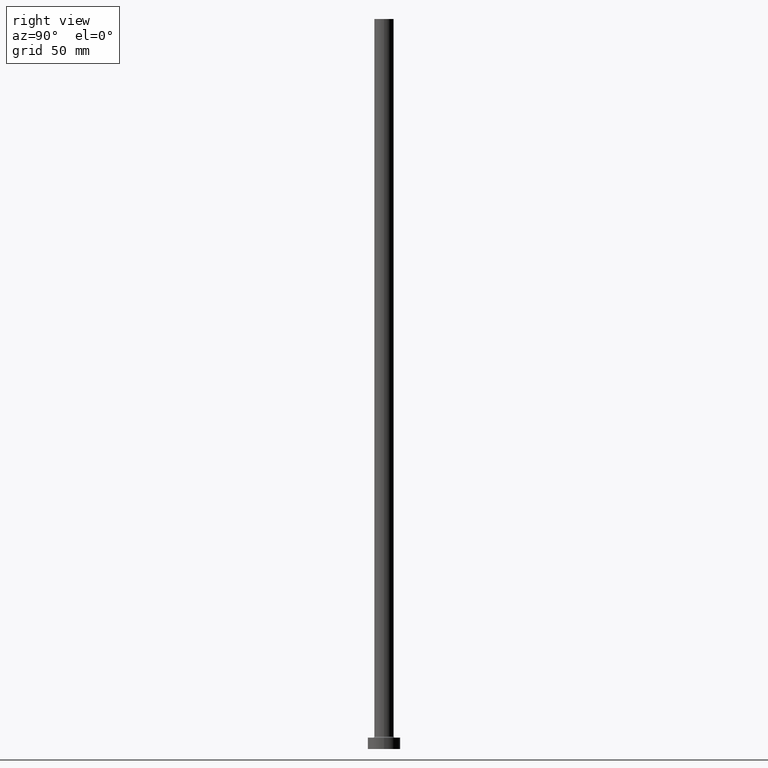
[diagram: clean part render]
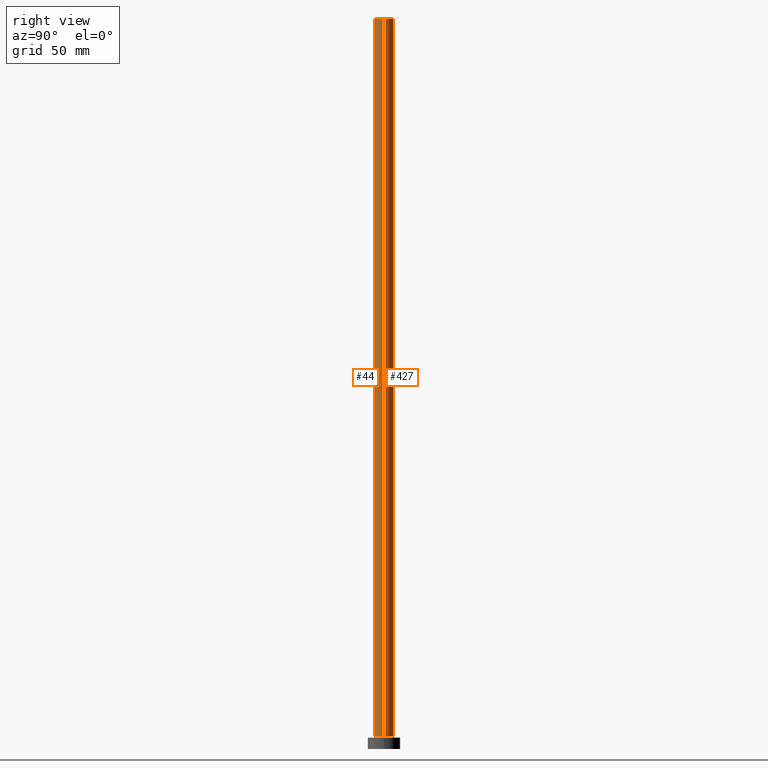
[diagram: same view with one multi-face feature highlighted, each face labeled with its STEP entity id]
A machine part, right view. The highlighted faces form ONE feature: a constant-radius fillet chain: 2 tangent blend faces with common blend radius 6 mm. The faces share edges in the B-rep.
Their STEP definitions:
[1] entity #44 (Cylinder):
#3 = DIRECTION ( 'NONE',  ( 0.000000000000000000, 0.000000000000000000, 1.000000000000000000 ) ) ;
#30 = LINE ( 'NONE', #189, #120 ) ;
#31 = CIRCLE ( 'NONE', #143, 6.000000000000000888 ) ;
#32 = CARTESIAN_POINT ( 'NONE',  ( 0.000000000000000000, 0.000000000000000000, 7.699999999999985079 ) ) ;
#44 = ADVANCED_FACE ( 'NONE', ( #417 ), #104, .T. ) ;
#45 = CARTESIAN_POINT ( 'NONE',  ( -6.000000000000000888, 0.000000000000000000, 450.0000000000000000 ) ) ;
#59 = CARTESIAN_POINT ( 'NONE',  ( 0.000000000000000000, 0.000000000000000000, 450.0000000000000000 ) ) ;
#68 = VERTEX_POINT ( 'NONE', #409 ) ;
#73 = AXIS2_PLACEMENT_3D ( 'NONE', #59, #218, #352 ) ;
#79 = EDGE_CURVE ( 'NONE', #258, #68, #347, .T. ) ;
#85 = VERTEX_POINT ( 'NONE', #195 ) ;
#89 = ORIENTED_EDGE ( 'NONE', *, *, #422, .F. ) ;
#100 = VERTEX_POINT ( 'NONE', #344 ) ;
#104 = CYLINDRICAL_SURFACE ( 'NONE', #73, 6.000000000000000888 ) ;
#105 = LINE ( 'NONE', #318, #328 ) ;
#120 = VECTOR ( 'NONE', #287, 1000.000000000000000 ) ;
#143 = AXIS2_PLACEMENT_3D ( 'NONE', #32, #3, #288 ) ;
#159 = AXIS2_PLACEMENT_3D ( 'NONE', #216, #350, #380 ) ;
#189 = CARTESIAN_POINT ( 'NONE',  ( 6.000000000000000888, 7.347880794884120722E-16, 450.0000000000000000 ) ) ;
#194 = ORIENTED_EDGE ( 'NONE', *, *, #79, .F. ) ;
#195 = CARTESIAN_POINT ( 'NONE',  ( 6.000000000000000888, 7.347880794884120722E-16, 7.699999999999985079 ) ) ;
#216 = CARTESIAN_POINT ( 'NONE',  ( 0.000000000000000000, 0.000000000000000000, 450.0000000000000000 ) ) ;
#217 = ORIENTED_EDGE ( 'NONE', *, *, #331, .T. ) ;
#218 = DIRECTION ( 'NONE',  ( -0.000000000000000000, -0.000000000000000000, -1.000000000000000000 ) ) ;
#250 = DIRECTION ( 'NONE',  ( -0.000000000000000000, -0.000000000000000000, -1.000000000000000000 ) ) ;
#258 = VERTEX_POINT ( 'NONE', #45 ) ;
#271 = EDGE_LOOP ( 'NONE', ( #89, #194, #343, #217 ) ) ;
#287 = DIRECTION ( 'NONE',  ( -0.000000000000000000, -0.000000000000000000, -1.000000000000000000 ) ) ;
#288 = DIRECTION ( 'NONE',  ( 1.000000000000000000, 0.000000000000000000, 0.000000000000000000 ) ) ;
#318 = CARTESIAN_POINT ( 'NONE',  ( -6.000000000000000888, 0.000000000000000000, 450.0000000000000000 ) ) ;
#328 = VECTOR ( 'NONE', #250, 1000.000000000000000 ) ;
#331 = EDGE_CURVE ( 'NONE', #100, #85, #31, .T. ) ;
#343 = ORIENTED_EDGE ( 'NONE', *, *, #391, .T. ) ;
#344 = CARTESIAN_POINT ( 'NONE',  ( -6.000000000000000888, 0.000000000000000000, 7.699999999999985079 ) ) ;
#347 = CIRCLE ( 'NONE', #159, 6.000000000000000888 ) ;
#350 = DIRECTION ( 'NONE',  ( 0.000000000000000000, 0.000000000000000000, 1.000000000000000000 ) ) ;
#352 = DIRECTION ( 'NONE',  ( -1.000000000000000000, 0.000000000000000000, 0.000000000000000000 ) ) ;
#380 = DIRECTION ( 'NONE',  ( 1.000000000000000000, 0.000000000000000000, 0.000000000000000000 ) ) ;
#391 = EDGE_CURVE ( 'NONE', #258, #100, #105, .T. ) ;
#409 = CARTESIAN_POINT ( 'NONE',  ( 6.000000000000000888, 7.347880794884120722E-16, 450.0000000000000000 ) ) ;
#417 = FACE_OUTER_BOUND ( 'NONE', #271, .T. ) ;
#422 = EDGE_CURVE ( 'NONE', #68, #85, #30, .T. ) ;
[2] entity #427 (Cylinder):
#5 = FACE_OUTER_BOUND ( 'NONE', #144, .T. ) ;
#7 = ORIENTED_EDGE ( 'NONE', *, *, #341, .F. ) ;
#30 = LINE ( 'NONE', #189, #120 ) ;
#34 = CIRCLE ( 'NONE', #102, 6.000000000000000888 ) ;
#38 = CARTESIAN_POINT ( 'NONE',  ( 0.000000000000000000, 0.000000000000000000, 450.0000000000000000 ) ) ;
#40 = AXIS2_PLACEMENT_3D ( 'NONE', #150, #423, #108 ) ;
#45 = CARTESIAN_POINT ( 'NONE',  ( -6.000000000000000888, 0.000000000000000000, 450.0000000000000000 ) ) ;
#68 = VERTEX_POINT ( 'NONE', #409 ) ;
#85 = VERTEX_POINT ( 'NONE', #195 ) ;
#100 = VERTEX_POINT ( 'NONE', #344 ) ;
#102 = AXIS2_PLACEMENT_3D ( 'NONE', #119, #333, #230 ) ;
#105 = LINE ( 'NONE', #318, #328 ) ;
#108 = DIRECTION ( 'NONE',  ( 1.000000000000000000, 0.000000000000000000, 0.000000000000000000 ) ) ;
#119 = CARTESIAN_POINT ( 'NONE',  ( 0.000000000000000000, 0.000000000000000000, 7.699999999999985079 ) ) ;
#120 = VECTOR ( 'NONE', #287, 1000.000000000000000 ) ;
#144 = EDGE_LOOP ( 'NONE', ( #7, #360, #339, #153 ) ) ;
#150 = CARTESIAN_POINT ( 'NONE',  ( 0.000000000000000000, 0.000000000000000000, 450.0000000000000000 ) ) ;
#153 = ORIENTED_EDGE ( 'NONE', *, *, #391, .F. ) ;
#155 = DIRECTION ( 'NONE',  ( -1.000000000000000000, 0.000000000000000000, 0.000000000000000000 ) ) ;
#164 = AXIS2_PLACEMENT_3D ( 'NONE', #38, #402, #155 ) ;
#189 = CARTESIAN_POINT ( 'NONE',  ( 6.000000000000000888, 7.347880794884120722E-16, 450.0000000000000000 ) ) ;
#195 = CARTESIAN_POINT ( 'NONE',  ( 6.000000000000000888, 7.347880794884120722E-16, 7.699999999999985079 ) ) ;
#230 = DIRECTION ( 'NONE',  ( 1.000000000000000000, 0.000000000000000000, 0.000000000000000000 ) ) ;
#237 = EDGE_CURVE ( 'NONE', #85, #100, #34, .T. ) ;
#250 = DIRECTION ( 'NONE',  ( -0.000000000000000000, -0.000000000000000000, -1.000000000000000000 ) ) ;
#258 = VERTEX_POINT ( 'NONE', #45 ) ;
#287 = DIRECTION ( 'NONE',  ( -0.000000000000000000, -0.000000000000000000, -1.000000000000000000 ) ) ;
#318 = CARTESIAN_POINT ( 'NONE',  ( -6.000000000000000888, 0.000000000000000000, 450.0000000000000000 ) ) ;
#328 = VECTOR ( 'NONE', #250, 1000.000000000000000 ) ;
#332 = CIRCLE ( 'NONE', #40, 6.000000000000000888 ) ;
#333 = DIRECTION ( 'NONE',  ( 0.000000000000000000, 0.000000000000000000, 1.000000000000000000 ) ) ;
#339 = ORIENTED_EDGE ( 'NONE', *, *, #237, .T. ) ;
#341 = EDGE_CURVE ( 'NONE', #68, #258, #332, .T. ) ;
#344 = CARTESIAN_POINT ( 'NONE',  ( -6.000000000000000888, 0.000000000000000000, 7.699999999999985079 ) ) ;
#360 = ORIENTED_EDGE ( 'NONE', *, *, #422, .T. ) ;
#391 = EDGE_CURVE ( 'NONE', #258, #100, #105, .T. ) ;
#397 = CYLINDRICAL_SURFACE ( 'NONE', #164, 6.000000000000000888 ) ;
#402 = DIRECTION ( 'NONE',  ( -0.000000000000000000, -0.000000000000000000, -1.000000000000000000 ) ) ;
#409 = CARTESIAN_POINT ( 'NONE',  ( 6.000000000000000888, 7.347880794884120722E-16, 450.0000000000000000 ) ) ;
#422 = EDGE_CURVE ( 'NONE', #68, #85, #30, .T. ) ;
#423 = DIRECTION ( 'NONE',  ( 0.000000000000000000, 0.000000000000000000, 1.000000000000000000 ) ) ;
#427 = ADVANCED_FACE ( 'NONE', ( #5 ), #397, .T. ) ;